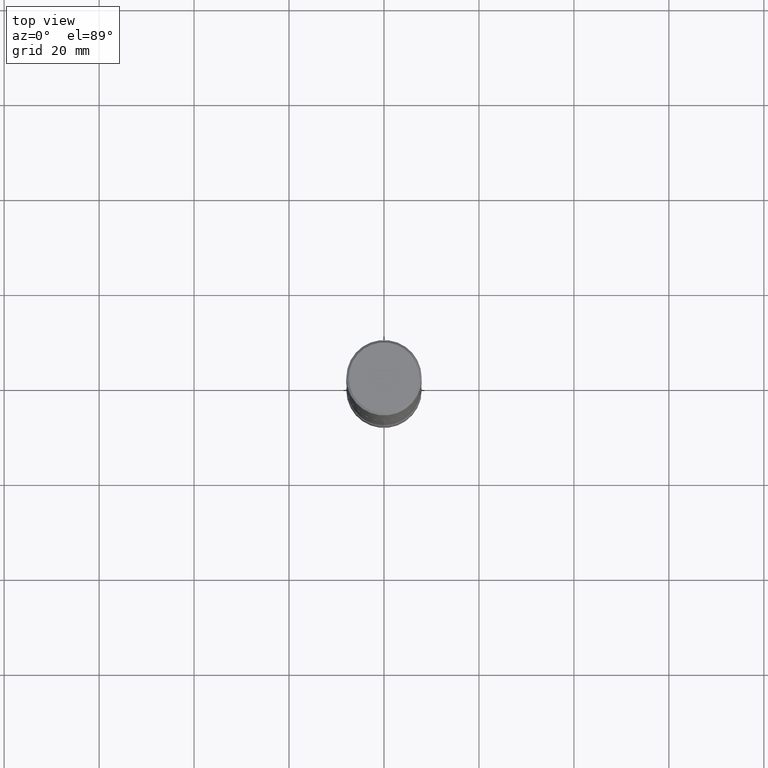
[diagram: clean part render]
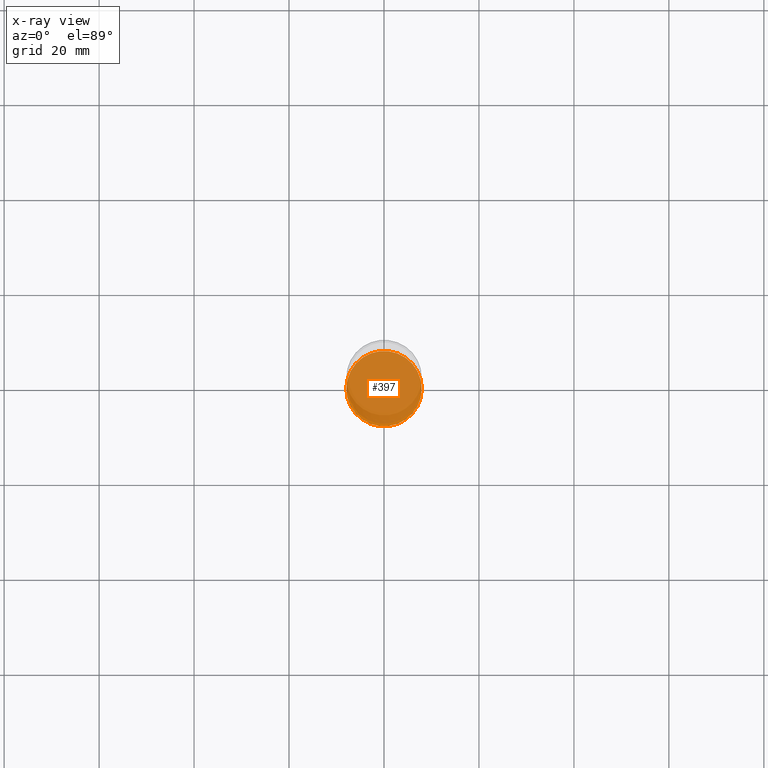
[diagram: x-ray — body ghosted, one internal face saturated and labeled with its STEP entity id]
A machine part, top view, then the same camera in x-ray: the body is ghosted and one INTERNAL B-rep face — a face not visible from any outside direction — is saturated and labeled: STEP entity #397.
In plain terms, the highlighted planar face has unit normal (0, -0, -1).
Its self-contained STEP definition (entity closure, byte-faithful):
#23 = CIRCLE ( 'NONE', #230, 0.3125000000000001665 ) ;
#25 = VERTEX_POINT ( 'NONE', #35 ) ;
#35 = CARTESIAN_POINT ( 'NONE',  ( 0.3125000000000001665, -2.051245286570347946E-14, -5.250000000000000888 ) ) ;
#98 = EDGE_CURVE ( 'NONE', #487, #25, #370, .T. ) ;
#115 = CARTESIAN_POINT ( 'NONE',  ( -0.3125000000000001665, -1.736676426165973636E-14, -5.250000000000000888 ) ) ;
#131 = DIRECTION ( 'NONE',  ( -2.445468806185136597E-29, 3.491481338843145583E-15, 1.000000000000000000 ) ) ;
#142 = AXIS2_PLACEMENT_3D ( 'NONE', #269, #131, #258 ) ;
#230 = AXIS2_PLACEMENT_3D ( 'NONE', #251, #431, #261 ) ;
#233 = CARTESIAN_POINT ( 'NONE',  ( 1.283871123247196938E-28, -1.833027702892651638E-14, -5.250000000000000888 ) ) ;
#251 = CARTESIAN_POINT ( 'NONE',  ( 1.283871123247196938E-28, -1.833027702892651638E-14, -5.250000000000000888 ) ) ;
#258 = DIRECTION ( 'NONE',  ( 1.000000000000000000, -6.982962677686271444E-15, 0.000000000000000000 ) ) ;
#261 = DIRECTION ( 'NONE',  ( 1.000000000000000000, -6.982962677686271444E-15, 0.000000000000000000 ) ) ;
#269 = CARTESIAN_POINT ( 'NONE',  ( 1.283871123247196938E-28, -1.833027702892651638E-14, -5.250000000000000888 ) ) ;
#323 = AXIS2_PLACEMENT_3D ( 'NONE', #233, #532, #494 ) ;
#365 = EDGE_LOOP ( 'NONE', ( #395, #416 ) ) ;
#370 = CIRCLE ( 'NONE', #142, 0.3125000000000001665 ) ;
#395 = ORIENTED_EDGE ( 'NONE', *, *, #553, .T. ) ;
#397 = ADVANCED_FACE ( 'NONE', ( #448 ), #406, .F. ) ;
#406 = PLANE ( 'NONE',  #323 ) ;
#416 = ORIENTED_EDGE ( 'NONE', *, *, #98, .T. ) ;
#431 = DIRECTION ( 'NONE',  ( -2.445468806185136597E-29, 3.491481338843145583E-15, 1.000000000000000000 ) ) ;
#448 = FACE_OUTER_BOUND ( 'NONE', #365, .T. ) ;
#487 = VERTEX_POINT ( 'NONE', #115 ) ;
#494 = DIRECTION ( 'NONE',  ( -1.000000000000000000, 6.982962677686265922E-15, -4.876176775795935793E-29 ) ) ;
#532 = DIRECTION ( 'NONE',  ( 2.438088387897960049E-29, -3.491481338843145188E-15, -1.000000000000000000 ) ) ;
#553 = EDGE_CURVE ( 'NONE', #25, #487, #23, .T. ) ;